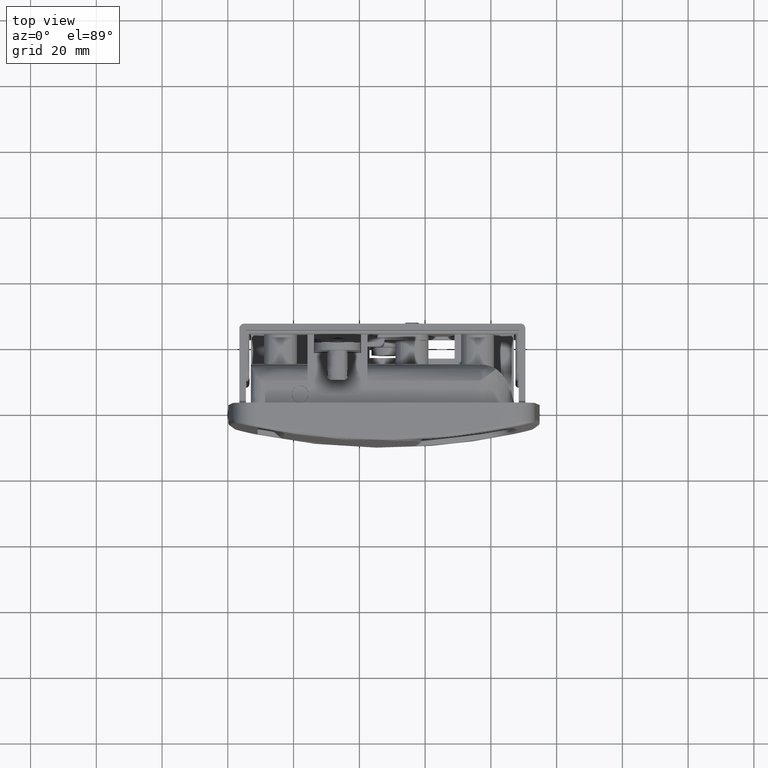
[diagram: clean part render]
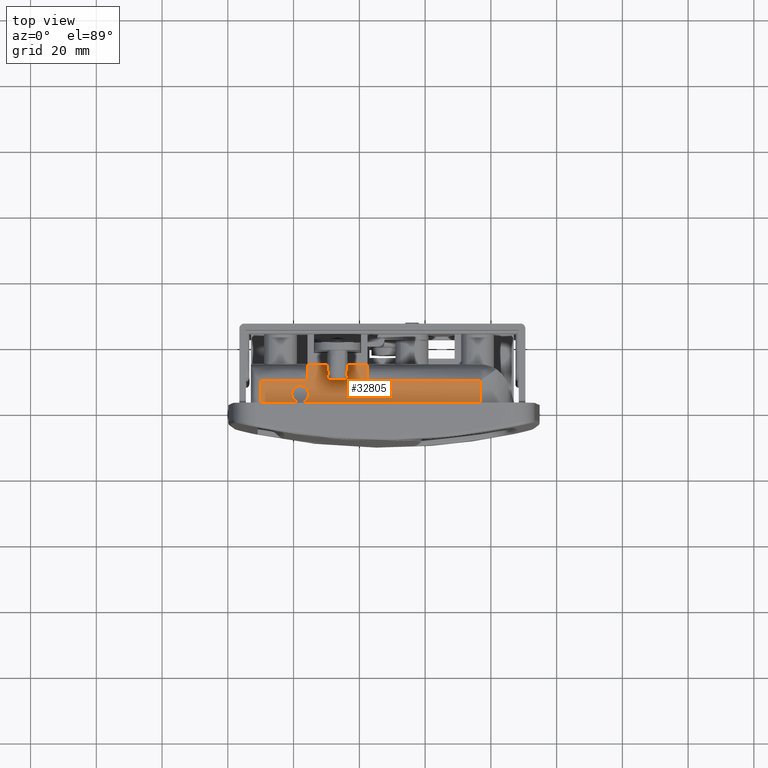
[diagram: same view with one face highlighted and labeled with its STEP entity id]
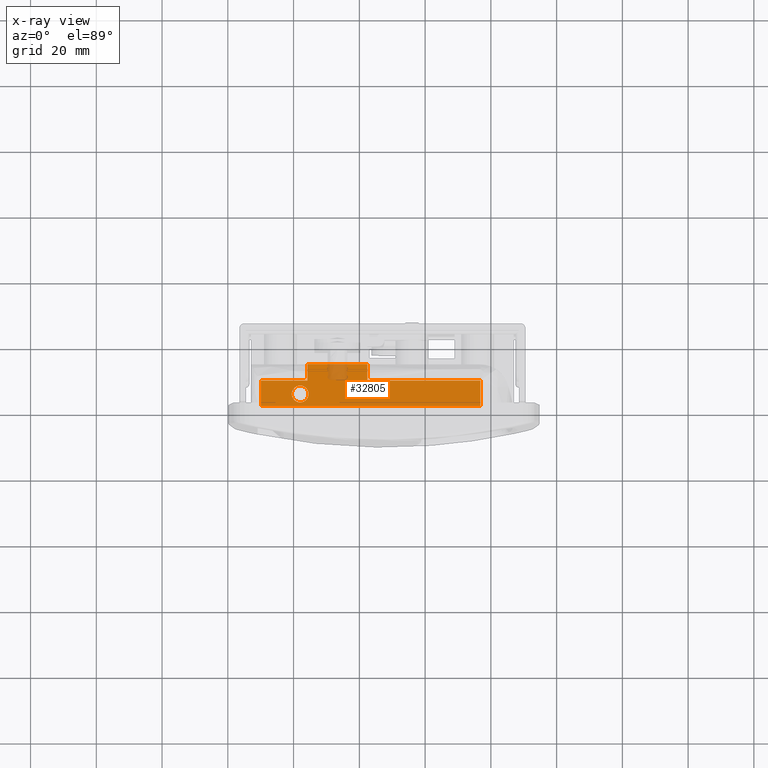
[diagram: x-ray of the same camera — body ghosted, the highlighted face saturated]
A machine part, top view. The second image highlights one B-rep face of the part: STEP entity #32805.
The next image is the same camera in x-ray: the body ghosted, the highlighted face saturated — about 5% of this face is hidden behind the body in this view.
In plain terms, the highlighted face is a freeform B-spline surface patch.
Its self-contained STEP definition (entity closure, byte-faithful):
#26469=CARTESIAN_POINT('',(23.863119893730559,5.441058394856069,56.999955629349962));
#26470=VERTEX_POINT('',#26469);
#26476=CARTESIAN_POINT('',(22.000000057182490,6.250000000000105,56.999955629355803));
#26477=VERTEX_POINT('',#26476);
#26478=CARTESIAN_POINT('',(23.863119893730559,5.441058394856069,56.999955629349962));
#26479=CARTESIAN_POINT('',(23.610894006968511,5.711806705136329,56.999955629350737));
#26480=CARTESIAN_POINT('',(23.022551129600711,6.114340724384288,56.999955629352620));
#26481=CARTESIAN_POINT('',(22.326477754780591,6.250315348359290,56.999955629354787));
#26482=CARTESIAN_POINT('',(22.000000057182490,6.250000000000105,56.999955629355803));
#26483=B_SPLINE_CURVE_WITH_KNOTS('',3,(#26478,#26479,#26480,#26481,#26482),.UNSPECIFIED.,.F.,.U.,(4,1,4),(0.000000138079801,1.109826128415695,2.089149305662644),.UNSPECIFIED.);
#26484=EDGE_CURVE('',#26470,#26477,#26483,.T.);
#26486=CARTESIAN_POINT('',(19.449999999988751,3.700000000000105,56.999955629363797));
#26487=VERTEX_POINT('',#26486);
#26488=CARTESIAN_POINT('',(22.000000057182490,6.250000000000105,56.999955629355803));
#26489=CARTESIAN_POINT('',(21.603436666066379,6.250773521982792,56.999955629357373));
#26490=CARTESIAN_POINT('',(20.999221658909420,6.105899424889903,56.999955629358567));
#26491=CARTESIAN_POINT('',(20.230090378037598,5.592063003426358,56.999955629361473));
#26492=CARTESIAN_POINT('',(19.633332815980911,4.846789209138023,56.999955629363427));
#26493=CARTESIAN_POINT('',(19.449147301666251,4.117380846268365,56.999955629363392));
#26494=CARTESIAN_POINT('',(19.449999999988751,3.700000000000105,56.999955629363797));
#26495=B_SPLINE_CURVE_WITH_KNOTS('',3,(#26488,#26489,#26490,#26491,#26492,#26493,#26494),.UNSPECIFIED.,.F.,.U.,(4,1,1,1,4),(0.000000423424865,1.189179678059617,1.815081555225756,2.753855631004001,4.005631180345332),.UNSPECIFIED.);
#26496=EDGE_CURVE('',#26477,#26487,#26495,.T.);
#26498=CARTESIAN_POINT('',(20.136880106246949,1.958941605144141,56.999955629361637));
#26499=VERTEX_POINT('',#26498);
#26500=CARTESIAN_POINT('',(19.449999999988751,3.700000000000105,56.999955629363797));
#26501=CARTESIAN_POINT('',(19.449767945639550,3.400518367025755,56.999955629363882));
#26502=CARTESIAN_POINT('',(19.563902048511039,2.761889996295506,56.999955629363271));
#26503=CARTESIAN_POINT('',(19.904848814524311,2.206671496862588,56.999955629362439));
#26504=CARTESIAN_POINT('',(20.136880106246949,1.958941605144141,56.999955629361637));
#26505=B_SPLINE_CURVE_WITH_KNOTS('',3,(#26500,#26501,#26502,#26503,#26504),.UNSPECIFIED.,.F.,.U.,(4,1,4),(0.000000089910756,0.898375152260669,1.916482355408171),.UNSPECIFIED.);
#26506=EDGE_CURVE('',#26487,#26499,#26505,.T.);
#26586=CARTESIAN_POINT('',(21.999999942795021,1.150000000000106,56.999955629355803));
#26587=VERTEX_POINT('',#26586);
#26588=CARTESIAN_POINT('',(20.136880106246949,1.958941605144141,56.999955629361637));
#26589=CARTESIAN_POINT('',(20.359543459241522,1.720171025269098,56.999955629361040));
#26590=CARTESIAN_POINT('',(20.934179251823121,1.304466804831944,56.999955629358922));
#26591=CARTESIAN_POINT('',(21.629964351731989,1.149441899819424,56.999955629357103));
#26592=CARTESIAN_POINT('',(21.999999942795021,1.150000000000106,56.999955629355803));
#26593=B_SPLINE_CURVE_WITH_KNOTS('',3,(#26588,#26589,#26590,#26591,#26592),.UNSPECIFIED.,.F.,.U.,(4,1,4),(0.000000138079304,0.979323315328412,2.089149305662644),.UNSPECIFIED.);
#26594=EDGE_CURVE('',#26499,#26587,#26593,.T.);
#26596=CARTESIAN_POINT('',(24.549999999988749,3.700000000000105,56.999955629347809));
#26597=VERTEX_POINT('',#26596);
#26598=CARTESIAN_POINT('',(21.999999942795021,1.150000000000106,56.999955629355803));
#26599=CARTESIAN_POINT('',(22.396545445123611,1.149248439589445,56.999955629354517));
#26600=CARTESIAN_POINT('',(23.000835896374991,1.294049182678663,56.999955629352961));
#26601=CARTESIAN_POINT('',(23.699879258883598,1.761317314913571,56.999955629350360));
#26602=CARTESIAN_POINT('',(24.160161757640982,2.281723572670923,56.999955629348783));
#26603=CARTESIAN_POINT('',(24.475695239114870,2.948998241190384,56.999955629349117));
#26604=CARTESIAN_POINT('',(24.550102583791841,3.449649076298228,56.999955629346722));
#26605=CARTESIAN_POINT('',(24.549999999988749,3.700000000000105,56.999955629347809));
#26606=B_SPLINE_CURVE_WITH_KNOTS('',3,(#26598,#26599,#26600,#26601,#26602,#26603,#26604,#26605),.UNSPECIFIED.,.F.,.U.,(4,1,1,1,1,4),(0.000000423426123,1.189179678060340,1.815081555226155,2.503479130708680,3.254591440184040,4.005631180345285),.UNSPECIFIED.);
#26607=EDGE_CURVE('',#26587,#26597,#26606,.T.);
#26609=CARTESIAN_POINT('',(24.549999999988749,3.700000000000105,56.999955629347809));
#26610=CARTESIAN_POINT('',(24.550063953708879,3.919601318689352,56.999955629347831));
#26611=CARTESIAN_POINT('',(24.492927544992789,4.358760422280017,56.999955629347888));
#26612=CARTESIAN_POINT('',(24.249530087509839,4.955154541571620,56.999955629349017));
#26613=CARTESIAN_POINT('',(23.999442650453979,5.295222365177548,56.999955629349301));
#26614=CARTESIAN_POINT('',(23.863119893730559,5.441058394856069,56.999955629349962));
#26615=B_SPLINE_CURVE_WITH_KNOTS('',3,(#26609,#26610,#26611,#26612,#26613,#26614),.UNSPECIFIED.,.F.,.U.,(4,1,1,4),(0.000000089910886,0.658804500962093,1.317578547164660,1.916482355408163),.UNSPECIFIED.);
#26616=EDGE_CURVE('',#26597,#26470,#26615,.T.);
#30453=CARTESIAN_POINT('',(42.434088068140049,7.800000000000270,56.999955629291797));
#30454=VERTEX_POINT('',#30453);
#30470=CARTESIAN_POINT('',(76.827377903247395,7.800000000000249,56.999955629184001));
#30471=VERTEX_POINT('',#30470);
#30472=CARTESIAN_POINT('',(76.827377903247395,7.800000000000249,56.999955629184001));
#30473=CARTESIAN_POINT('',(42.434088068140049,7.800000000000270,56.999955629291797));
#30474=QUASI_UNIFORM_CURVE('',1,(#30472,#30473),.UNSPECIFIED.,.F.,.U.);
#30475=EDGE_CURVE('',#30471,#30454,#30474,.T.);
#30653=CARTESIAN_POINT('',(10.000000000186620,7.800000000000249,56.999955629393597));
#30654=VERTEX_POINT('',#30653);
#30697=CARTESIAN_POINT('',(24.234088068140050,7.800000000000270,56.999955629348797));
#30698=VERTEX_POINT('',#30697);
#30699=CARTESIAN_POINT('',(24.234088068140050,7.800000000000270,56.999955629348797));
#30700=CARTESIAN_POINT('',(10.000000000186620,7.800000000000249,56.999955629393597));
#30701=QUASI_UNIFORM_CURVE('',1,(#30699,#30700),.UNSPECIFIED.,.F.,.U.);
#30702=EDGE_CURVE('',#30698,#30654,#30701,.T.);
#31011=CARTESIAN_POINT('',(42.434088068140071,12.800000000000001,56.999977814453850));
#31012=VERTEX_POINT('',#31011);
#31020=CARTESIAN_POINT('',(42.434088068140049,7.800000000000270,56.999955629291797));
#31021=CARTESIAN_POINT('',(42.434088068140071,12.800000000000001,56.999977814453850));
#31022=QUASI_UNIFORM_CURVE('',1,(#31020,#31021),.UNSPECIFIED.,.F.,.U.);
#31023=EDGE_CURVE('',#30454,#31012,#31022,.T.);
#31139=CARTESIAN_POINT('',(24.234088068140078,12.800000000000130,56.999977814482349));
#31140=VERTEX_POINT('',#31139);
#31182=CARTESIAN_POINT('',(24.234088068140078,12.800000000000130,56.999977814482349));
#31183=CARTESIAN_POINT('',(24.234088068140050,7.800000000000270,56.999955629348797));
#31184=QUASI_UNIFORM_CURVE('',1,(#31182,#31183),.UNSPECIFIED.,.F.,.U.);
#31185=EDGE_CURVE('',#31140,#30698,#31184,.T.);
#31296=CARTESIAN_POINT('',(24.234088068140078,12.800000000000130,56.999977814482349));
#31297=CARTESIAN_POINT('',(42.434088068140071,12.800000000000001,56.999977814453850));
#31298=QUASI_UNIFORM_CURVE('',1,(#31296,#31297),.UNSPECIFIED.,.F.,.U.);
#31299=EDGE_CURVE('',#31140,#31012,#31298,.T.);
#31631=CARTESIAN_POINT('',(10.000000000186620,0.0,56.999955629393597));
#31632=VERTEX_POINT('',#31631);
#31633=CARTESIAN_POINT('',(10.000000000186620,7.800000000000249,56.999955629393597));
#31634=CARTESIAN_POINT('',(10.000000000186620,0.0,56.999955629393597));
#31635=QUASI_UNIFORM_CURVE('',1,(#31633,#31634),.UNSPECIFIED.,.F.,.U.);
#31636=EDGE_CURVE('',#30654,#31632,#31635,.T.);
#31696=CARTESIAN_POINT('',(76.827377903247395,0.0,56.999955629184001));
#31697=VERTEX_POINT('',#31696);
#31698=CARTESIAN_POINT('',(76.827377903247395,7.800000000000249,56.999955629184001));
#31699=CARTESIAN_POINT('',(76.827377903247395,0.0,56.999955629184001));
#31700=QUASI_UNIFORM_CURVE('',1,(#31698,#31699),.UNSPECIFIED.,.F.,.U.);
#31701=EDGE_CURVE('',#30471,#31697,#31700,.T.);
#32041=CARTESIAN_POINT('',(10.000000000186620,0.0,56.999955629393597));
#32042=CARTESIAN_POINT('',(76.827377903247395,0.0,56.999955629184001));
#32043=QUASI_UNIFORM_CURVE('',1,(#32041,#32042),.UNSPECIFIED.,.F.,.U.);
#32044=EDGE_CURVE('',#31632,#31697,#32043,.T.);
#32782=CARTESIAN_POINT('',(80.165404672653239,-0.639359975191122,56.999955629173499));
#32783=CARTESIAN_POINT('',(6.661970840847499,-0.639359975191122,56.999955629403871));
#32784=CARTESIAN_POINT('',(80.165404672653239,13.439360318514010,56.999955629173499));
#32785=CARTESIAN_POINT('',(6.661970840847499,13.439360318514010,56.999955629403871));
#32786=B_SPLINE_SURFACE_WITH_KNOTS('',1,1,((#32782,#32784),(#32783,#32785)),.UNSPECIFIED.,.F.,.F.,.U.,(2,2),(2,2),(0.0,73.503433831805737),(0.0,14.078720293705130),.UNSPECIFIED.);
#32787=ORIENTED_EDGE('',*,*,#31701,.F.);
#32788=ORIENTED_EDGE('',*,*,#30475,.T.);
#32789=ORIENTED_EDGE('',*,*,#31023,.T.);
#32790=ORIENTED_EDGE('',*,*,#31299,.F.);
#32791=ORIENTED_EDGE('',*,*,#31185,.T.);
#32792=ORIENTED_EDGE('',*,*,#30702,.T.);
#32793=ORIENTED_EDGE('',*,*,#31636,.T.);
#32794=ORIENTED_EDGE('',*,*,#32044,.T.);
#32795=EDGE_LOOP('',(#32787,#32788,#32789,#32790,#32791,#32792,#32793,#32794));
#32796=FACE_OUTER_BOUND('',#32795,.T.);
#32797=ORIENTED_EDGE('',*,*,#26607,.F.);
#32798=ORIENTED_EDGE('',*,*,#26594,.F.);
#32799=ORIENTED_EDGE('',*,*,#26506,.F.);
#32800=ORIENTED_EDGE('',*,*,#26496,.F.);
#32801=ORIENTED_EDGE('',*,*,#26484,.F.);
#32802=ORIENTED_EDGE('',*,*,#26616,.F.);
#32803=EDGE_LOOP('',(#32797,#32798,#32799,#32800,#32801,#32802));
#32804=FACE_BOUND('',#32803,.T.);
#32805=ADVANCED_FACE('',(#32796,#32804),#32786,.F.);